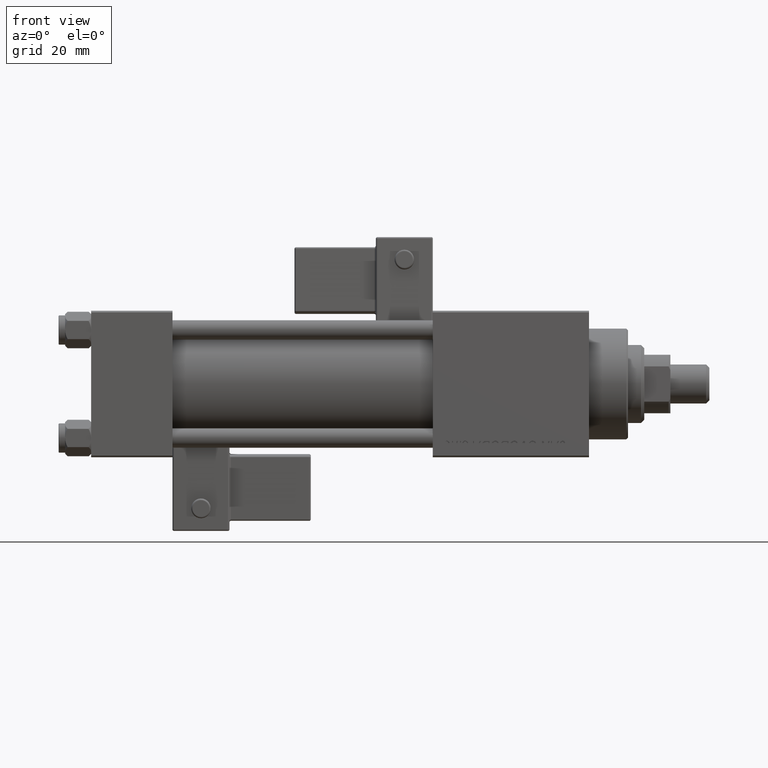
[diagram: clean part render]
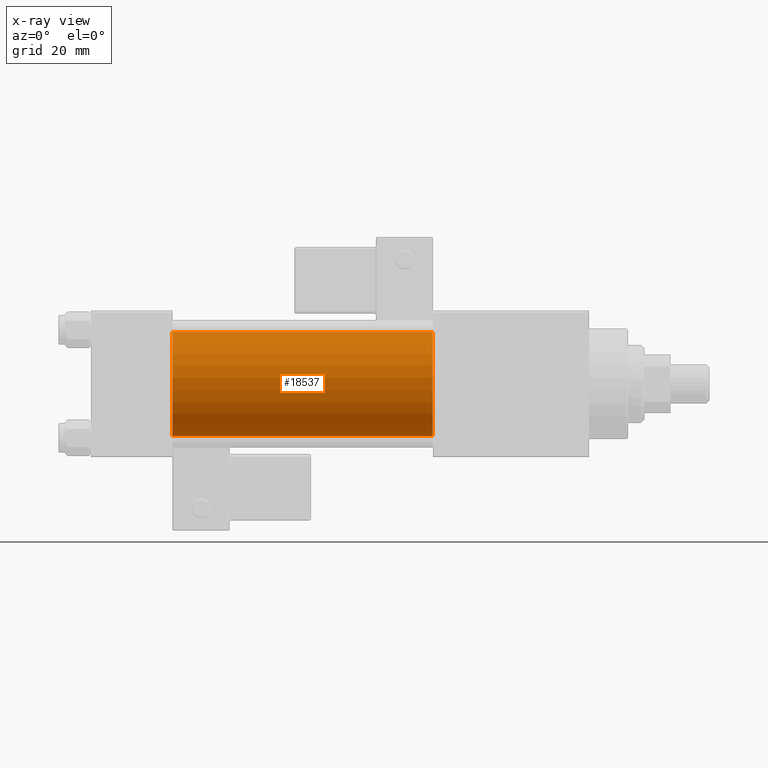
[diagram: x-ray — body ghosted, one internal face saturated and labeled with its STEP entity id]
A machine part, front view, then the same camera in x-ray: the body is ghosted and one INTERNAL B-rep face — a face not visible from any outside direction — is saturated and labeled: STEP entity #18537.
In plain terms, the highlighted cylindrical surface (partial cylindrical patch) has radius 16 mm, axis along (-1, -0, -0).
Its self-contained STEP definition (entity closure, byte-faithful):
#249 = AXIS2_PLACEMENT_3D ( 'NONE', #327, #12044, #8211 ) ;
#327 = CARTESIAN_POINT ( 'NONE',  ( 105.0000000000000142, -2.602085213965210642E-15, 0.000000000000000000 ) ) ;
#2483 = CYLINDRICAL_SURFACE ( 'NONE', #39367, 16.00000000000000000 ) ;
#2759 = FACE_OUTER_BOUND ( 'NONE', #24093, .T. ) ;
#3215 = CIRCLE ( 'NONE', #33588, 16.00000000000000000 ) ;
#3558 = LINE ( 'NONE', #21499, #48965 ) ;
#4236 = EDGE_CURVE ( 'NONE', #41705, #7261, #3215, .T. ) ;
#6103 = VECTOR ( 'NONE', #30831, 1000.000000000000000 ) ;
#7261 = VERTEX_POINT ( 'NONE', #23820 ) ;
#8014 = ORIENTED_EDGE ( 'NONE', *, *, #50421, .T. ) ;
#8211 = DIRECTION ( 'NONE',  ( 0.000000000000000000, 0.000000000000000000, -1.000000000000000000 ) ) ;
#9529 = VERTEX_POINT ( 'NONE', #46472 ) ;
#12044 = DIRECTION ( 'NONE',  ( 1.000000000000000000, 0.000000000000000000, 0.000000000000000000 ) ) ;
#13025 = DIRECTION ( 'NONE',  ( 0.000000000000000000, 0.000000000000000000, -1.000000000000000000 ) ) ;
#15009 = CARTESIAN_POINT ( 'NONE',  ( 105.0000000000000142, -2.602085213965210642E-15, 0.000000000000000000 ) ) ;
#15552 = DIRECTION ( 'NONE',  ( -1.000000000000000000, -0.000000000000000000, -0.000000000000000000 ) ) ;
#17527 = EDGE_CURVE ( 'NONE', #29884, #9529, #27183, .T. ) ;
#18537 = ADVANCED_FACE ( 'NONE', ( #2759 ), #2483, .F. ) ;
#20296 = EDGE_CURVE ( 'NONE', #29884, #41705, #3558, .T. ) ;
#21499 = CARTESIAN_POINT ( 'NONE',  ( 105.0000000000000142, -2.602085213965210642E-15, 16.00000000000000000 ) ) ;
#22307 = DIRECTION ( 'NONE',  ( -1.000000000000000000, -0.000000000000000000, -0.000000000000000000 ) ) ;
#23820 = CARTESIAN_POINT ( 'NONE',  ( 25.00000000000000000, -6.426503353294456087E-16, -16.00000000000000000 ) ) ;
#24093 = EDGE_LOOP ( 'NONE', ( #25484, #8014, #33338, #51807 ) ) ;
#25484 = ORIENTED_EDGE ( 'NONE', *, *, #17527, .T. ) ;
#26095 = DIRECTION ( 'NONE',  ( 1.000000000000000000, 0.000000000000000000, 0.000000000000000000 ) ) ;
#26444 = CARTESIAN_POINT ( 'NONE',  ( 25.00000000000000000, -2.602085213965210642E-15, 16.00000000000000000 ) ) ;
#26769 = LINE ( 'NONE', #34110, #6103 ) ;
#27183 = CIRCLE ( 'NONE', #249, 16.00000000000000000 ) ;
#29884 = VERTEX_POINT ( 'NONE', #50675 ) ;
#30831 = DIRECTION ( 'NONE',  ( -1.000000000000000000, -0.000000000000000000, -0.000000000000000000 ) ) ;
#33338 = ORIENTED_EDGE ( 'NONE', *, *, #4236, .F. ) ;
#33588 = AXIS2_PLACEMENT_3D ( 'NONE', #46744, #26095, #13025 ) ;
#34110 = CARTESIAN_POINT ( 'NONE',  ( 105.0000000000000142, -6.426503353294456087E-16, -16.00000000000000000 ) ) ;
#39367 = AXIS2_PLACEMENT_3D ( 'NONE', #15009, #15552, #47900 ) ;
#41705 = VERTEX_POINT ( 'NONE', #26444 ) ;
#46472 = CARTESIAN_POINT ( 'NONE',  ( 105.0000000000000142, -6.426503353294456087E-16, -16.00000000000000000 ) ) ;
#46744 = CARTESIAN_POINT ( 'NONE',  ( 25.00000000000000000, -2.602085213965210642E-15, 0.000000000000000000 ) ) ;
#47900 = DIRECTION ( 'NONE',  ( 0.000000000000000000, 0.000000000000000000, 1.000000000000000000 ) ) ;
#48965 = VECTOR ( 'NONE', #22307, 1000.000000000000000 ) ;
#50421 = EDGE_CURVE ( 'NONE', #9529, #7261, #26769, .T. ) ;
#50675 = CARTESIAN_POINT ( 'NONE',  ( 105.0000000000000142, -2.602085213965210642E-15, 16.00000000000000000 ) ) ;
#51807 = ORIENTED_EDGE ( 'NONE', *, *, #20296, .F. ) ;